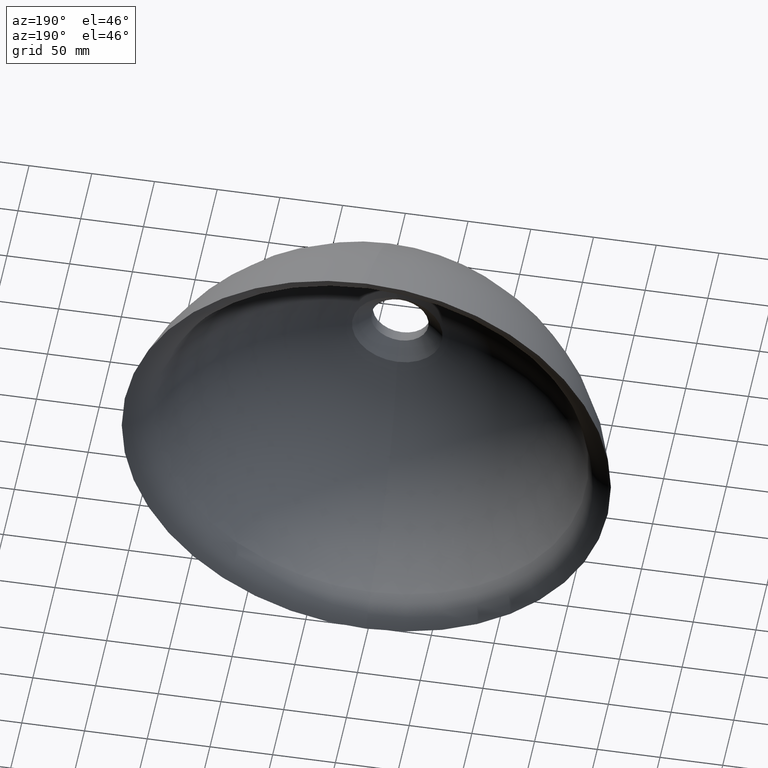
[diagram: clean part render]
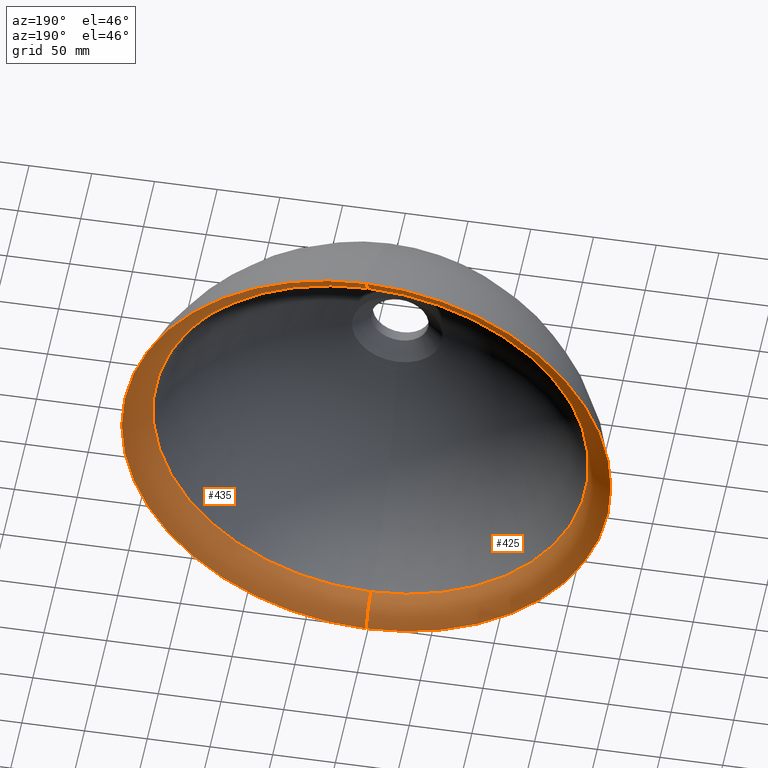
[diagram: same view with one multi-face feature highlighted, each face labeled with its STEP entity id]
A machine part, auxiliary view. The highlighted faces form ONE feature: a constant-radius fillet chain: 2 tangent blend faces with common blend radius 33.0801 mm. The faces share edges in the B-rep.
Their STEP definitions:
[1] entity #435 (Torus):
#7 = CARTESIAN_POINT ( 'NONE',  ( 0.0000000000000000000, 140.0000000000000000, 0.0000000000000000000 ) ) ;
#26 = VERTEX_POINT ( 'NONE', #413 ) ;
#60 = DIRECTION ( 'NONE',  ( -0.0000000000000000000, -1.000000000000000000, -0.0000000000000000000 ) ) ;
#61 = AXIS2_PLACEMENT_3D ( 'NONE', #358, #90, #81 ) ;
#68 = ORIENTED_EDGE ( 'NONE', *, *, #163, .T. ) ;
#70 = DIRECTION ( 'NONE',  ( -0.0000000000000000000, -1.000000000000000000, -0.0000000000000000000 ) ) ;
#75 = DIRECTION ( 'NONE',  ( 0.0000000000000000000, 0.0000000000000000000, -1.000000000000000000 ) ) ;
#81 = DIRECTION ( 'NONE',  ( -1.224646799147352700E-016, 0.0000000000000000000, -1.000000000000000000 ) ) ;
#87 = DIRECTION ( 'NONE',  ( 0.0000000000000000000, 0.0000000000000000000, -1.000000000000000000 ) ) ;
#89 = AXIS2_PLACEMENT_3D ( 'NONE', #126, #252, #232 ) ;
#90 = DIRECTION ( 'NONE',  ( 1.000000000000000000, 0.0000000000000000000, -1.224646799147353200E-016 ) ) ;
#109 = EDGE_CURVE ( 'NONE', #285, #448, #158, .T. ) ;
#126 = CARTESIAN_POINT ( 'NONE',  ( 0.0000000000000000000, 128.3656073108670100, -204.6726731252713900 ) ) ;
#129 = ORIENTED_EDGE ( 'NONE', *, *, #221, .F. ) ;
#136 = DIRECTION ( 'NONE',  ( 0.0000000000000000000, 0.0000000000000000000, -1.000000000000000000 ) ) ;
#152 = CARTESIAN_POINT ( 'NONE',  ( 2.388061258337338900E-014, 160.0000000000000000, 195.0000000000000000 ) ) ;
#154 = CARTESIAN_POINT ( 'NONE',  ( 0.0000000000000000000, 160.0000000000000000, 0.0000000000000000000 ) ) ;
#158 = CIRCLE ( 'NONE', #61, 33.08013612726856700 ) ;
#163 = EDGE_CURVE ( 'NONE', #26, #285, #301, .T. ) ;
#166 = CIRCLE ( 'NONE', #89, 33.08013612726856700 ) ;
#168 = EDGE_CURVE ( 'NONE', #26, #210, #166, .T. ) ;
#206 = AXIS2_PLACEMENT_3D ( 'NONE', #154, #60, #136 ) ;
#210 = VERTEX_POINT ( 'NONE', #395 ) ;
#221 = EDGE_CURVE ( 'NONE', #210, #448, #295, .T. ) ;
#225 = DIRECTION ( 'NONE',  ( -0.0000000000000000000, -1.000000000000000000, -0.0000000000000000000 ) ) ;
#232 = DIRECTION ( 'NONE',  ( 0.0000000000000000000, 0.0000000000000000000, 1.000000000000000000 ) ) ;
#252 = DIRECTION ( 'NONE',  ( -1.000000000000000000, 0.0000000000000000000, 0.0000000000000000000 ) ) ;
#264 = ORIENTED_EDGE ( 'NONE', *, *, #109, .T. ) ;
#280 = EDGE_LOOP ( 'NONE', ( #68, #264, #129, #386 ) ) ;
#285 = VERTEX_POINT ( 'NONE', #428 ) ;
#295 = CIRCLE ( 'NONE', #206, 195.0000000000000000 ) ;
#301 = CIRCLE ( 'NONE', #429, 173.7059762889333600 ) ;
#319 = CARTESIAN_POINT ( 'NONE',  ( 0.0000000000000000000, 128.3656073108670100, 0.0000000000000000000 ) ) ;
#358 = CARTESIAN_POINT ( 'NONE',  ( 2.506517340157961100E-014, 128.3656073108670100, 204.6726731252713900 ) ) ;
#366 = FACE_OUTER_BOUND ( 'NONE', #280, .T. ) ;
#386 = ORIENTED_EDGE ( 'NONE', *, *, #168, .F. ) ;
#395 = CARTESIAN_POINT ( 'NONE',  ( 0.0000000000000000000, 160.0000000000000000, -195.0000000000000000 ) ) ;
#413 = CARTESIAN_POINT ( 'NONE',  ( 0.0000000000000000000, 140.0000000000000000, -173.7059762889333900 ) ) ;
#415 = AXIS2_PLACEMENT_3D ( 'NONE', #319, #70, #75 ) ;
#420 = TOROIDAL_SURFACE ( 'NONE', #415, 204.6726731252713900, 33.08013612726855300 ) ;
#428 = CARTESIAN_POINT ( 'NONE',  ( 2.127284678550083000E-014, 140.0000000000000000, 173.7059762889333900 ) ) ;
#429 = AXIS2_PLACEMENT_3D ( 'NONE', #7, #225, #87 ) ;
#435 = ADVANCED_FACE ( 'NONE', ( #366 ), #420, .T. ) ;
#448 = VERTEX_POINT ( 'NONE', #152 ) ;
[2] entity #425 (Torus):
#2 = DIRECTION ( 'NONE',  ( -0.0000000000000000000, -1.000000000000000000, -0.0000000000000000000 ) ) ;
#4 = ORIENTED_EDGE ( 'NONE', *, *, #148, .T. ) ;
#10 = EDGE_CURVE ( 'NONE', #448, #210, #238, .T. ) ;
#26 = VERTEX_POINT ( 'NONE', #413 ) ;
#36 = ORIENTED_EDGE ( 'NONE', *, *, #168, .T. ) ;
#61 = AXIS2_PLACEMENT_3D ( 'NONE', #358, #90, #81 ) ;
#79 = DIRECTION ( 'NONE',  ( 0.0000000000000000000, 0.0000000000000000000, -1.000000000000000000 ) ) ;
#81 = DIRECTION ( 'NONE',  ( -1.224646799147352700E-016, 0.0000000000000000000, -1.000000000000000000 ) ) ;
#83 = TOROIDAL_SURFACE ( 'NONE', #404, 204.6726731252713900, 33.08013612726855300 ) ;
#89 = AXIS2_PLACEMENT_3D ( 'NONE', #126, #252, #232 ) ;
#90 = DIRECTION ( 'NONE',  ( 1.000000000000000000, 0.0000000000000000000, -1.224646799147353200E-016 ) ) ;
#108 = FACE_OUTER_BOUND ( 'NONE', #303, .T. ) ;
#109 = EDGE_CURVE ( 'NONE', #285, #448, #158, .T. ) ;
#118 = AXIS2_PLACEMENT_3D ( 'NONE', #267, #271, #313 ) ;
#126 = CARTESIAN_POINT ( 'NONE',  ( 0.0000000000000000000, 128.3656073108670100, -204.6726731252713900 ) ) ;
#133 = CARTESIAN_POINT ( 'NONE',  ( 0.0000000000000000000, 140.0000000000000000, 0.0000000000000000000 ) ) ;
#148 = EDGE_CURVE ( 'NONE', #285, #26, #344, .T. ) ;
#152 = CARTESIAN_POINT ( 'NONE',  ( 2.388061258337338900E-014, 160.0000000000000000, 195.0000000000000000 ) ) ;
#158 = CIRCLE ( 'NONE', #61, 33.08013612726856700 ) ;
#166 = CIRCLE ( 'NONE', #89, 33.08013612726856700 ) ;
#168 = EDGE_CURVE ( 'NONE', #26, #210, #166, .T. ) ;
#210 = VERTEX_POINT ( 'NONE', #395 ) ;
#231 = ORIENTED_EDGE ( 'NONE', *, *, #109, .F. ) ;
#232 = DIRECTION ( 'NONE',  ( 0.0000000000000000000, 0.0000000000000000000, 1.000000000000000000 ) ) ;
#238 = CIRCLE ( 'NONE', #118, 195.0000000000000000 ) ;
#250 = DIRECTION ( 'NONE',  ( -0.0000000000000000000, -1.000000000000000000, -0.0000000000000000000 ) ) ;
#252 = DIRECTION ( 'NONE',  ( -1.000000000000000000, 0.0000000000000000000, 0.0000000000000000000 ) ) ;
#267 = CARTESIAN_POINT ( 'NONE',  ( 0.0000000000000000000, 160.0000000000000000, 0.0000000000000000000 ) ) ;
#271 = DIRECTION ( 'NONE',  ( -0.0000000000000000000, -1.000000000000000000, -0.0000000000000000000 ) ) ;
#285 = VERTEX_POINT ( 'NONE', #428 ) ;
#303 = EDGE_LOOP ( 'NONE', ( #231, #4, #36, #382 ) ) ;
#313 = DIRECTION ( 'NONE',  ( 0.0000000000000000000, 0.0000000000000000000, -1.000000000000000000 ) ) ;
#329 = CARTESIAN_POINT ( 'NONE',  ( 0.0000000000000000000, 128.3656073108670100, 0.0000000000000000000 ) ) ;
#330 = AXIS2_PLACEMENT_3D ( 'NONE', #133, #2, #332 ) ;
#332 = DIRECTION ( 'NONE',  ( 0.0000000000000000000, 0.0000000000000000000, -1.000000000000000000 ) ) ;
#344 = CIRCLE ( 'NONE', #330, 173.7059762889333600 ) ;
#358 = CARTESIAN_POINT ( 'NONE',  ( 2.506517340157961100E-014, 128.3656073108670100, 204.6726731252713900 ) ) ;
#382 = ORIENTED_EDGE ( 'NONE', *, *, #10, .F. ) ;
#395 = CARTESIAN_POINT ( 'NONE',  ( 0.0000000000000000000, 160.0000000000000000, -195.0000000000000000 ) ) ;
#404 = AXIS2_PLACEMENT_3D ( 'NONE', #329, #250, #79 ) ;
#413 = CARTESIAN_POINT ( 'NONE',  ( 0.0000000000000000000, 140.0000000000000000, -173.7059762889333900 ) ) ;
#425 = ADVANCED_FACE ( 'NONE', ( #108 ), #83, .T. ) ;
#428 = CARTESIAN_POINT ( 'NONE',  ( 2.127284678550083000E-014, 140.0000000000000000, 173.7059762889333900 ) ) ;
#448 = VERTEX_POINT ( 'NONE', #152 ) ;